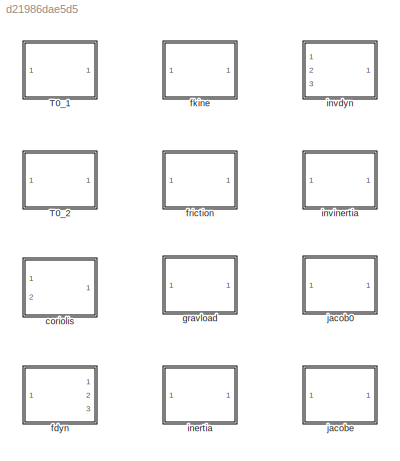
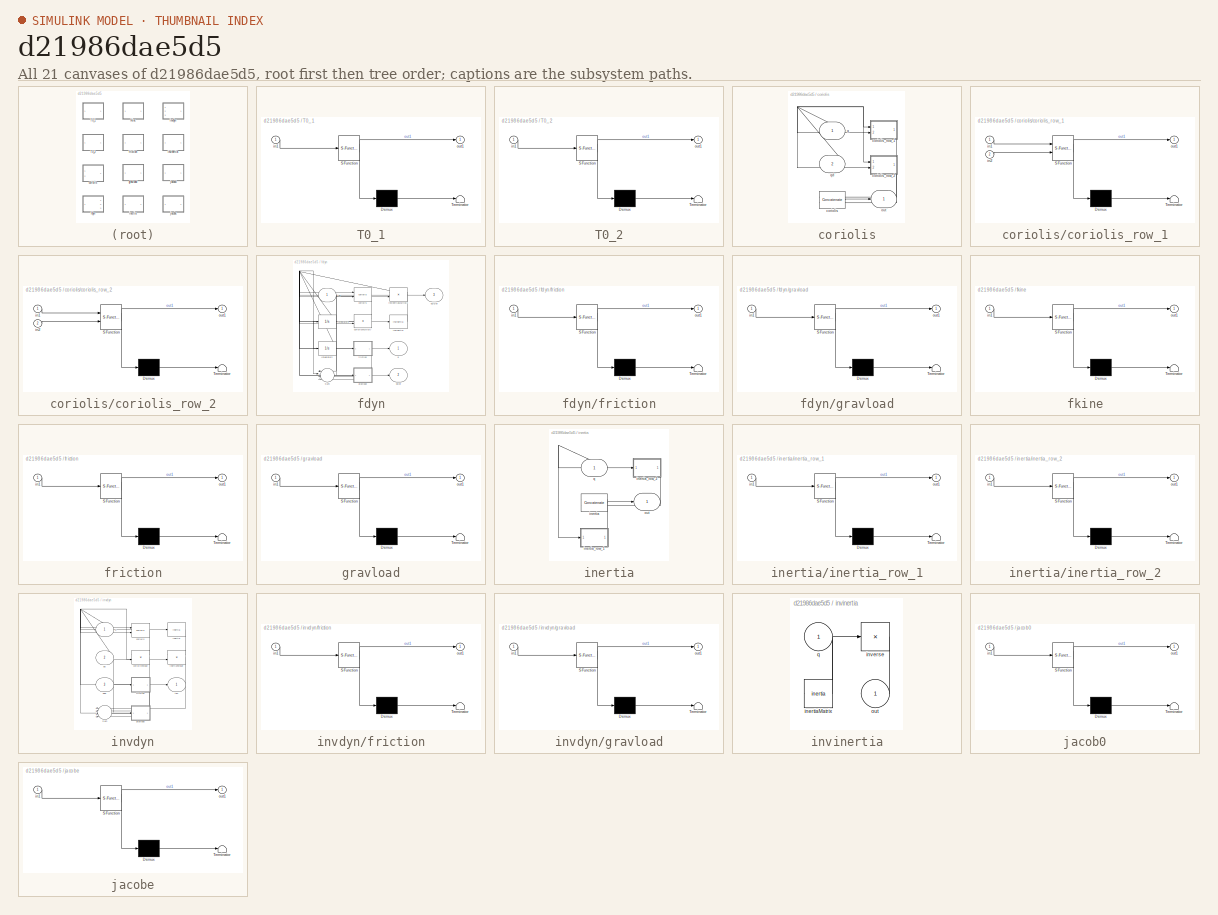
[diagram: thumbnail index - all 21 canvases of the model, root first then tree order]
MODEL slx_d21986dae5d5
KIND library
CONFIG AbsTol = auto
CONFIG EnableMultiTasking = off
CONFIG FixedStep = auto
CONFIG MaxStep = auto
CONFIG MinStep = auto
CONFIG RelTol = 1e-3
CONFIG SampleTimeConstraint = Unconstrained
CONFIG Solver = VariableStepAuto
CONFIG SolverName = VariableStepAuto
CONFIG StartTime = 0.0
CONFIG StopTime = 10.0
BLOCK [SubSystem] T0_1
  ErrorFcn = Stateflow.Translate.translate
  PermitHierarchicalResolution = ExplicitOnly
  Ports = [1, 1]
  RequestExecContextInheritance = off
  SFBlockType = MATLAB Function
  TreatAsAtomicUnit = on
BLOCK [Demux] T0_1/ Demux 
  Outputs = 1
  Ports = [1, 1]
BLOCK [S-Function] T0_1/ SFunction 
  EnableBusSupport = off
  FunctionName = sf_sfun
  PortCounts = [1 2]
  Ports = [1, 2]
  SFcnIsStateOwnerBlock = off
  SFunctionDeploymentMode = off
  Tag = Stateflow S-Function twolinkslib 4
BLOCK [Terminator] T0_1/ Terminator 
BLOCK [Inport] T0_1/in1
  IconDisplay = Port number
BLOCK [Outport] T0_1/out1
  IconDisplay = Port number
BLOCK [SubSystem] T0_2
  ErrorFcn = Stateflow.Translate.translate
  PermitHierarchicalResolution = ExplicitOnly
  Ports = [1, 1]
  RequestExecContextInheritance = off
  SFBlockType = MATLAB Function
  TreatAsAtomicUnit = on
BLOCK [Demux] T0_2/ Demux 
  Outputs = 1
  Ports = [1, 1]
BLOCK [S-Function] T0_2/ SFunction 
  EnableBusSupport = off
  FunctionName = sf_sfun
  PortCounts = [1 2]
  Ports = [1, 2]
  SFcnIsStateOwnerBlock = off
  SFunctionDeploymentMode = off
  Tag = Stateflow S-Function twolinkslib 5
BLOCK [Terminator] T0_2/ Terminator 
BLOCK [Inport] T0_2/in1
  IconDisplay = Port number
BLOCK [Outport] T0_2/out1
  IconDisplay = Port number
BLOCK [SubSystem] coriolis
  Ports = [2, 1]
  RequestExecContextInheritance = off
BLOCK [Concatenate] coriolis/coriolis
  Mode = Multidimensional array
  Ports = [2, 1]
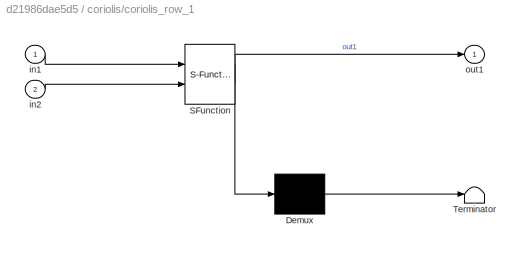
BLOCK [SubSystem] coriolis/coriolis_row_1
  ErrorFcn = Stateflow.Translate.translate
  PermitHierarchicalResolution = ExplicitOnly
  Ports = [2, 1]
  RequestExecContextInheritance = off
  SFBlockType = MATLAB Function
  TreatAsAtomicUnit = on
BLOCK [Demux] coriolis/coriolis_row_1/ Demux 
  Outputs = 1
  Ports = [1, 1]
BLOCK [S-Function] coriolis/coriolis_row_1/ SFunction 
  EnableBusSupport = off
  FunctionName = sf_sfun
  PortCounts = [2 2]
  Ports = [2, 2]
  SFcnIsStateOwnerBlock = off
  SFunctionDeploymentMode = off
  Tag = Stateflow S-Function twolinkslib 9
BLOCK [Terminator] coriolis/coriolis_row_1/ Terminator 
BLOCK [Inport] coriolis/coriolis_row_1/in1
  IconDisplay = Port number
BLOCK [Inport] coriolis/coriolis_row_1/in2
  IconDisplay = Port number
  Port = 2
BLOCK [Outport] coriolis/coriolis_row_1/out1
  IconDisplay = Port number
BLOCK [SubSystem] coriolis/coriolis_row_2
  ErrorFcn = Stateflow.Translate.translate
  PermitHierarchicalResolution = ExplicitOnly
  Ports = [2, 1]
  RequestExecContextInheritance = off
  SFBlockType = MATLAB Function
  TreatAsAtomicUnit = on
BLOCK [Demux] coriolis/coriolis_row_2/ Demux 
  Outputs = 1
  Ports = [1, 1]
BLOCK [S-Function] coriolis/coriolis_row_2/ SFunction 
  EnableBusSupport = off
  FunctionName = sf_sfun
  PortCounts = [2 2]
  Ports = [2, 2]
  SFcnIsStateOwnerBlock = off
  SFunctionDeploymentMode = off
  Tag = Stateflow S-Function twolinkslib 10
BLOCK [Terminator] coriolis/coriolis_row_2/ Terminator 
BLOCK [Inport] coriolis/coriolis_row_2/in1
  IconDisplay = Port number
BLOCK [Inport] coriolis/coriolis_row_2/in2
  IconDisplay = Port number
  Port = 2
BLOCK [Outport] coriolis/coriolis_row_2/out1
  IconDisplay = Port number
BLOCK [Outport] coriolis/out
  IconDisplay = Port number
BLOCK [Inport] coriolis/q
  IconDisplay = Port number
BLOCK [Inport] coriolis/qd
  IconDisplay = Port number
  Port = 2
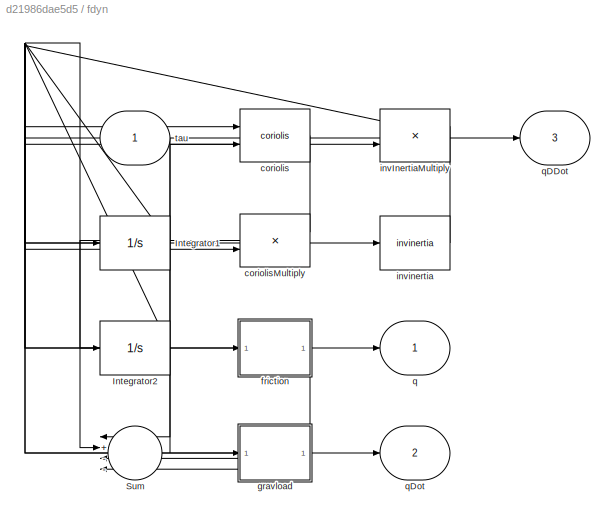
BLOCK [SubSystem] fdyn
  Ports = [1, 3]
  RequestExecContextInheritance = off
BLOCK [Integrator] fdyn/Integrator1
  Ports = [1, 1]
BLOCK [Integrator] fdyn/Integrator2
  Ports = [1, 1]
BLOCK [Sum] fdyn/Sum
  Inputs = |+---
  Ports = [4, 1]
BLOCK [Reference] fdyn/coriolis  REF=$bdroot/coriolis
  Ports = [2, 1]
  SourceBlock = $bdroot/coriolis
  SourceType = SubSystem
BLOCK [Product] fdyn/coriolisMultiply
  Multiplication = Matrix(*)
  Ports = [2, 1]
BLOCK [SubSystem] fdyn/friction
  ErrorFcn = Stateflow.Translate.translate
  PermitHierarchicalResolution = ExplicitOnly
  Ports = [1, 1]
  RequestExecContextInheritance = off
  SFBlockType = MATLAB Function
  TreatAsAtomicUnit = on
BLOCK [Demux] fdyn/friction/ Demux 
  Outputs = 1
  Ports = [1, 1]
BLOCK [S-Function] fdyn/friction/ SFunction 
  EnableBusSupport = off
  FunctionName = sf_sfun
  PortCounts = [1 2]
  Ports = [1, 2]
  SFcnIsStateOwnerBlock = off
  SFunctionDeploymentMode = off
  Tag = Stateflow S-Function twolinkslib 13
BLOCK [Terminator] fdyn/friction/ Terminator 
BLOCK [Inport] fdyn/friction/in1
  IconDisplay = Port number
BLOCK [Outport] fdyn/friction/out1
  IconDisplay = Port number
BLOCK [SubSystem] fdyn/gravload
  ErrorFcn = Stateflow.Translate.translate
  PermitHierarchicalResolution = ExplicitOnly
  Ports = [1, 1]
  RequestExecContextInheritance = off
  SFBlockType = MATLAB Function
  TreatAsAtomicUnit = on
BLOCK [Demux] fdyn/gravload/ Demux 
  Outputs = 1
  Ports = [1, 1]
BLOCK [S-Function] fdyn/gravload/ SFunction 
  EnableBusSupport = off
  FunctionName = sf_sfun
  PortCounts = [1 2]
  Ports = [1, 2]
  SFcnIsStateOwnerBlock = off
  SFunctionDeploymentMode = off
  Tag = Stateflow S-Function twolinkslib 12
BLOCK [Terminator] fdyn/gravload/ Terminator 
BLOCK [Inport] fdyn/gravload/in1
  IconDisplay = Port number
BLOCK [Outport] fdyn/gravload/out1
  IconDisplay = Port number
BLOCK [Product] fdyn/invInertiaMultiply
  Multiplication = Matrix(*)
  Ports = [2, 1]
BLOCK [Reference] fdyn/invinertia  REF=$bdroot/invinertia
  Ports = [1, 1]
  SourceBlock = $bdroot/invinertia
  SourceType = SubSystem
BLOCK [Outport] fdyn/q
  IconDisplay = Port number
BLOCK [Outport] fdyn/qDDot
  IconDisplay = Port number
  Port = 3
BLOCK [Outport] fdyn/qDot
  IconDisplay = Port number
  Port = 2
BLOCK [Inport] fdyn/tau
  IconDisplay = Port number
BLOCK [SubSystem] fkine
  ErrorFcn = Stateflow.Translate.translate
  PermitHierarchicalResolution = ExplicitOnly
  Ports = [1, 1]
  RequestExecContextInheritance = off
  SFBlockType = MATLAB Function
  TreatAsAtomicUnit = on
BLOCK [Demux] fkine/ Demux 
  Outputs = 1
  Ports = [1, 1]
BLOCK [S-Function] fkine/ SFunction 
  EnableBusSupport = off
  FunctionName = sf_sfun
  PortCounts = [1 2]
  Ports = [1, 2]
  SFcnIsStateOwnerBlock = off
  SFunctionDeploymentMode = off
  Tag = Stateflow S-Function twolinkslib 3
BLOCK [Terminator] fkine/ Terminator 
BLOCK [Inport] fkine/in1
  IconDisplay = Port number
BLOCK [Outport] fkine/out1
  IconDisplay = Port number
BLOCK [SubSystem] friction
  ErrorFcn = Stateflow.Translate.translate
  PermitHierarchicalResolution = ExplicitOnly
  Ports = [1, 1]
  RequestExecContextInheritance = off
  SFBlockType = MATLAB Function
  TreatAsAtomicUnit = on
BLOCK [Demux] friction/ Demux 
  Outputs = 1
  Ports = [1, 1]
BLOCK [S-Function] friction/ SFunction 
  EnableBusSupport = off
  FunctionName = sf_sfun
  PortCounts = [1 2]
  Ports = [1, 2]
  SFcnIsStateOwnerBlock = off
  SFunctionDeploymentMode = off
  Tag = Stateflow S-Function twolinkslib 11
BLOCK [Terminator] friction/ Terminator 
BLOCK [Inport] friction/in1
  IconDisplay = Port number
BLOCK [Outport] friction/out1
  IconDisplay = Port number
BLOCK [SubSystem] gravload
  ErrorFcn = Stateflow.Translate.translate
  PermitHierarchicalResolution = ExplicitOnly
  Ports = [1, 1]
  RequestExecContextInheritance = off
  SFBlockType = MATLAB Function
  TreatAsAtomicUnit = on
BLOCK [Demux] gravload/ Demux 
  Outputs = 1
  Ports = [1, 1]
BLOCK [S-Function] gravload/ SFunction 
  EnableBusSupport = off
  FunctionName = sf_sfun
  PortCounts = [1 2]
  Ports = [1, 2]
  SFcnIsStateOwnerBlock = off
  SFunctionDeploymentMode = off
  Tag = Stateflow S-Function twolinkslib 8
BLOCK [Terminator] gravload/ Terminator 
BLOCK [Inport] gravload/in1
  IconDisplay = Port number
BLOCK [Outport] gravload/out1
  IconDisplay = Port number
BLOCK [SubSystem] inertia
  Ports = [1, 1]
  RequestExecContextInheritance = off
BLOCK [Concatenate] inertia/inertia
  Mode = Multidimensional array
  Ports = [2, 1]
BLOCK [SubSystem] inertia/inertia_row_1
  ErrorFcn = Stateflow.Translate.translate
  PermitHierarchicalResolution = ExplicitOnly
  Ports = [1, 1]
  RequestExecContextInheritance = off
  SFBlockType = MATLAB Function
  TreatAsAtomicUnit = on
BLOCK [Demux] inertia/inertia_row_1/ Demux 
  Outputs = 1
  Ports = [1, 1]
BLOCK [S-Function] inertia/inertia_row_1/ SFunction 
  EnableBusSupport = off
  FunctionName = sf_sfun
  PortCounts = [1 2]
  Ports = [1, 2]
  SFcnIsStateOwnerBlock = off
  SFunctionDeploymentMode = off
  Tag = Stateflow S-Function twolinkslib 2
BLOCK [Terminator] inertia/inertia_row_1/ Terminator 
BLOCK [Inport] inertia/inertia_row_1/in1
  IconDisplay = Port number
BLOCK [Outport] inertia/inertia_row_1/out1
  IconDisplay = Port number
BLOCK [SubSystem] inertia/inertia_row_2
  ErrorFcn = Stateflow.Translate.translate
  PermitHierarchicalResolution = ExplicitOnly
  Ports = [1, 1]
  RequestExecContextInheritance = off
  SFBlockType = MATLAB Function
  TreatAsAtomicUnit = on
BLOCK [Demux] inertia/inertia_row_2/ Demux 
  Outputs = 1
  Ports = [1, 1]
BLOCK [S-Function] inertia/inertia_row_2/ SFunction 
  EnableBusSupport = off
  FunctionName = sf_sfun
  PortCounts = [1 2]
  Ports = [1, 2]
  SFcnIsStateOwnerBlock = off
  SFunctionDeploymentMode = off
  Tag = Stateflow S-Function twolinkslib 1
BLOCK [Terminator] inertia/inertia_row_2/ Terminator 
BLOCK [Inport] inertia/inertia_row_2/in1
  IconDisplay = Port number
BLOCK [Outport] inertia/inertia_row_2/out1
  IconDisplay = Port number
BLOCK [Outport] inertia/out
  IconDisplay = Port number
BLOCK [Inport] inertia/q
  IconDisplay = Port number
BLOCK [SubSystem] invdyn
  Ports = [3, 1]
  RequestExecContextInheritance = off
BLOCK [Sum] invdyn/Sum
  Inputs = ++++
  Ports = [4, 1]
BLOCK [Reference] invdyn/coriolis  REF=$bdroot/coriolis
  Ports = [2, 1]
  SourceBlock = $bdroot/coriolis
  SourceType = SubSystem
BLOCK [Product] invdyn/coriolisTorque
  Multiplication = Matrix(*)
  Ports = [2, 1]
BLOCK [SubSystem] invdyn/friction
  ErrorFcn = Stateflow.Translate.translate
  PermitHierarchicalResolution = ExplicitOnly
  Ports = [1, 1]
  RequestExecContextInheritance = off
  SFBlockType = MATLAB Function
  TreatAsAtomicUnit = on
BLOCK [Demux] invdyn/friction/ Demux 
  Outputs = 1
  Ports = [1, 1]
BLOCK [S-Function] invdyn/friction/ SFunction 
  EnableBusSupport = off
  FunctionName = sf_sfun
  PortCounts = [1 2]
  Ports = [1, 2]
  SFcnIsStateOwnerBlock = off
  SFunctionDeploymentMode = off
  Tag = Stateflow S-Function twolinkslib 15
BLOCK [Terminator] invdyn/friction/ Terminator 
BLOCK [Inport] invdyn/friction/in1
  IconDisplay = Port number
BLOCK [Outport] invdyn/friction/out1
  IconDisplay = Port number
BLOCK [SubSystem] invdyn/gravload
  ErrorFcn = Stateflow.Translate.translate
  PermitHierarchicalResolution = ExplicitOnly
  Ports = [1, 1]
  RequestExecContextInheritance = off
  SFBlockType = MATLAB Function
  TreatAsAtomicUnit = on
BLOCK [Demux] invdyn/gravload/ Demux 
  Outputs = 1
  Ports = [1, 1]
BLOCK [S-Function] invdyn/gravload/ SFunction 
  EnableBusSupport = off
  FunctionName = sf_sfun
  PortCounts = [1 2]
  Ports = [1, 2]
  SFcnIsStateOwnerBlock = off
  SFunctionDeploymentMode = off
  Tag = Stateflow S-Function twolinkslib 14
BLOCK [Terminator] invdyn/gravload/ Terminator 
BLOCK [Inport] invdyn/gravload/in1
  IconDisplay = Port number
BLOCK [Outport] invdyn/gravload/out1
  IconDisplay = Port number
BLOCK [Reference] invdyn/inertia  REF=$bdroot/inertia
  Ports = [1, 1]
  SourceBlock = $bdroot/inertia
  SourceType = SubSystem
BLOCK [Product] invdyn/inertiaTorque
  Multiplication = Matrix(*)
  Ports = [2, 1]
BLOCK [Inport] invdyn/q
  IconDisplay = Port number
BLOCK [Inport] invdyn/qd
  IconDisplay = Port number
  Port = 2
BLOCK [Inport] invdyn/qdd
  IconDisplay = Port number
  Port = 3
BLOCK [Outport] invdyn/tau
  IconDisplay = Port number
BLOCK [SubSystem] invinertia
  Ports = [1, 1]
  RequestExecContextInheritance = off
BLOCK [Reference] invinertia/inertiaMatrix  REF=$bdroot/inertia
  Ports = [1, 1]
  SourceBlock = $bdroot/inertia
  SourceType = SubSystem
BLOCK [Product] invinertia/inverse
  InputSameDT = off
  Inputs = /
  Multiplication = Matrix(*)
  OutDataTypeStr = Inherit: Inherit via internal rule
  Ports = [1, 1]
  RndMeth = Floor
  SaturateOnIntegerOverflow = off
BLOCK [Outport] invinertia/out
  IconDisplay = Port number
BLOCK [Inport] invinertia/q
  IconDisplay = Port number
BLOCK [SubSystem] jacob0
  ErrorFcn = Stateflow.Translate.translate
  PermitHierarchicalResolution = ExplicitOnly
  Ports = [1, 1]
  RequestExecContextInheritance = off
  SFBlockType = MATLAB Function
  TreatAsAtomicUnit = on
BLOCK [Demux] jacob0/ Demux 
  Outputs = 1
  Ports = [1, 1]
BLOCK [S-Function] jacob0/ SFunction 
  EnableBusSupport = off
  FunctionName = sf_sfun
  PortCounts = [1 2]
  Ports = [1, 2]
  SFcnIsStateOwnerBlock = off
  SFunctionDeploymentMode = off
  Tag = Stateflow S-Function twolinkslib 6
BLOCK [Terminator] jacob0/ Terminator 
BLOCK [Inport] jacob0/in1
  IconDisplay = Port number
BLOCK [Outport] jacob0/out1
  IconDisplay = Port number
BLOCK [SubSystem] jacobe
  ErrorFcn = Stateflow.Translate.translate
  PermitHierarchicalResolution = ExplicitOnly
  Ports = [1, 1]
  RequestExecContextInheritance = off
  SFBlockType = MATLAB Function
  TreatAsAtomicUnit = on
BLOCK [Demux] jacobe/ Demux 
  Outputs = 1
  Ports = [1, 1]
BLOCK [S-Function] jacobe/ SFunction 
  EnableBusSupport = off
  FunctionName = sf_sfun
  PortCounts = [1 2]
  Ports = [1, 2]
  SFcnIsStateOwnerBlock = off
  SFunctionDeploymentMode = off
  Tag = Stateflow S-Function twolinkslib 7
BLOCK [Terminator] jacobe/ Terminator 
BLOCK [Inport] jacobe/in1
  IconDisplay = Port number
BLOCK [Outport] jacobe/out1
  IconDisplay = Port number
LINE coriolis/coriolis:1 -> coriolis/out:1
LINE coriolis/coriolis_row_1:1 -> coriolis/coriolis:1
LINE coriolis/coriolis_row_2:1 -> coriolis/coriolis:2
NET coriolis/q:1 -> coriolis/coriolis_row_1:1, coriolis/coriolis_row_2:1
NET coriolis/qd:1 -> coriolis/coriolis_row_1:2, coriolis/coriolis_row_2:2
NET fdyn/Integrator1:1 -> fdyn/Integrator2:1, fdyn/coriolis:2, fdyn/coriolisMultiply:2, fdyn/friction:1, fdyn/qDot:1
NET fdyn/Integrator2:1 -> fdyn/coriolis:1, fdyn/gravload:1, fdyn/invinertia:1, fdyn/q:1
LINE fdyn/Sum:1 -> fdyn/invInertiaMultiply:2
LINE fdyn/coriolis:1 -> fdyn/coriolisMultiply:1
LINE fdyn/coriolisMultiply:1 -> fdyn/Sum:2
LINE fdyn/friction:1 -> fdyn/Sum:4
LINE fdyn/gravload:1 -> fdyn/Sum:3
NET fdyn/invInertiaMultiply:1 -> fdyn/Integrator1:1, fdyn/qDDot:1
LINE fdyn/invinertia:1 -> fdyn/invInertiaMultiply:1
LINE fdyn/tau:1 -> fdyn/Sum:1
LINE inertia/inertia:1 -> inertia/out:1
LINE inertia/inertia_row_1:1 -> inertia/inertia:1
LINE inertia/inertia_row_2:1 -> inertia/inertia:2
NET inertia/q:1 -> inertia/inertia_row_1:1, inertia/inertia_row_2:1
LINE invdyn/Sum:1 -> invdyn/tau:1
LINE invdyn/coriolis:1 -> invdyn/coriolisTorque:1
LINE invdyn/coriolisTorque:1 -> invdyn/Sum:2
LINE invdyn/friction:1 -> invdyn/Sum:4
LINE invdyn/gravload:1 -> invdyn/Sum:3
LINE invdyn/inertia:1 -> invdyn/inertiaTorque:1
LINE invdyn/inertiaTorque:1 -> invdyn/Sum:1
NET invdyn/q:1 -> invdyn/coriolis:1, invdyn/gravload:1, invdyn/inertia:1
NET invdyn/qd:1 -> invdyn/coriolis:2, invdyn/coriolisTorque:2, invdyn/friction:1
LINE invdyn/qdd:1 -> invdyn/inertiaTorque:2
LINE invinertia/inertiaMatrix:1 -> invinertia/inverse:1
LINE invinertia/inverse:1 -> invinertia/out:1
LINE invinertia/q:1 -> invinertia/inertiaMatrix:1
note: NET lines group one-source signal fan-out (src -> all destinations, sorted); 1:1 wires keep LINE
CHART inertia/inertia_row_2 states=1 transitions=1
  STATE_LABEL 'eML_blk_kernel()'
  STATE_LABEL 'SCRIPT:\nfunction out1 = inertia_row_2(in1)\n%#codegen\n\n%    This function was generated by the Symbolic Math Toolbox version 8.3.\n%    26-Apr-2019 09:45:12\n\nq2 = in1(:,2);\nout1 = [cos(q2)./2.0+1.0./4.0,1.0./4.0];\n'
CHART inertia/inertia_row_1 states=1 transitions=1
  STATE_LABEL 'eML_blk_kernel()'
  STATE_LABEL 'SCRIPT:\nfunction out1 = inertia_row_1(in1)\n%#codegen\n\n%    This function was generated by the Symbolic Math Toolbox version 8.3.\n%    26-Apr-2019 09:45:12\n\nq2 = in1(:,2);\nt2 = cos(q2);\nout1 = [t2+3.0./2.0,t2./2.0+1.0./4.0];\n'
CHART fkine states=1 transitions=1
  STATE_LABEL 'eML_blk_kernel()'
  STATE_LABEL 'SCRIPT:\nfunction out1 = fkine(in1)\n%#codegen\n\n%    This function was generated by the Symbolic Math Toolbox version 8.3.\n%    26-Apr-2019 09:45:03\n\nq1 = in1(:,1);\nq2 = in1(:,2);\nt2 = q1+q2;\nt3 = cos(t2);\nt4 = sin(t2);\nout1 = reshape([t3,0.0,t4,0.0,-t4,0.0,t3,0.0,0.0,-1.0,0.0,0.0,t3+cos(q1),0.0,t4+sin(q1),1.0],[4,4]);\n'
CHART T0_1 states=1 transitions=1
  STATE_LABEL 'eML_blk_kernel()'
  STATE_LABEL 'SCRIPT:\nfunction out1 = T0_1(in1)\n%#codegen\n\n%    This function was generated by the Symbolic Math Toolbox version 8.3.\n%    26-Apr-2019 09:45:03\n\nq1 = in1(:,1);\nt2 = cos(q1);\nt3 = sin(q1);\nout1 = reshape([t2,0.0,t3,0.0,-t3,0.0,t2,0.0,0.0,-1.0,0.0,0.0,t2,0.0,t3,1.0],[4,4]);\n'
CHART T0_2 states=1 transitions=1
  STATE_LABEL 'eML_blk_kernel()'
  STATE_LABEL 'SCRIPT:\nfunction out1 = T0_2(in1)\n%#codegen\n\n%    This function was generated by the Symbolic Math Toolbox version 8.3.\n%    26-Apr-2019 09:45:04\n\nq1 = in1(:,1);\nq2 = in1(:,2);\nt2 = cos(q1);\nt3 = cos(q2);\nt4 = sin(q1);\nt5 = sin(q2);\nt6 = t2.*t3;\nt7 = t2.*t5;\nt8 = t3.*t4;\nt9 = t4.*t5;\nt10 = -t9;\nt11 = t6+t10;\nout1 = reshape([t11,0.0,t7+t8,0.0,-t7-t8,0.0,t11,0.0,0.0,-1.0,0.0,0.0,t2+t11,0.0,t4+t7+t8,...<+13ch>'
CHART jacob0 states=1 transitions=1
  STATE_LABEL 'eML_blk_kernel()'
  STATE_LABEL 'SCRIPT:\nfunction out1 = jacob0(in1)\n%#codegen\n\n%    This function was generated by the Symbolic Math Toolbox version 8.3.\n%    26-Apr-2019 09:45:06\n\nq1 = in1(:,1);\nq2 = in1(:,2);\nt2 = cos(q2);\nt3 = sin(q2);\nt4 = q1+q2;\nt5 = t2+1.0;\nt6 = cos(t4);\nt7 = sin(t4);\nout1 = reshape([t3.*t6-t5.*t7,0.0,t3.*t7+t5.*t6,0.0,-1.0,0.0,-t7,0.0,t6,0.0,-1.0,0.0],[6,2]);\n'
CHART jacobe states=1 transitions=1
  STATE_LABEL 'eML_blk_kernel()'
  STATE_LABEL 'SCRIPT:\nfunction out1 = jacobe(in1)\n%#codegen\n\n%    This function was generated by the Symbolic Math Toolbox version 8.3.\n%    26-Apr-2019 09:45:07\n\nq2 = in1(:,2);\nout1 = reshape([sin(q2),cos(q2)+1.0,0.0,0.0,0.0,1.0,0.0,1.0,0.0,0.0,0.0,1.0],[6,2]);\n'
CHART gravload states=1 transitions=1
  STATE_LABEL 'eML_blk_kernel()'
  STATE_LABEL 'SCRIPT:\nfunction out1 = gravload(in1)\n%#codegen\n\n%    This function was generated by the Symbolic Math Toolbox version 8.3.\n%    26-Apr-2019 09:45:09\n\nq1 = in1(:,1);\nq2 = in1(:,2);\nt2 = q1+q2;\nt3 = cos(t2);\nt4 = t3.*(9.81e+2./2.0e+2);\nout1 = [t4+cos(q1).*1.4715e+1,t4];\n'  <repeated x3 — deduplicated; at blocks: gravload>
CHART coriolis/coriolis_row_1 states=1 transitions=1
  STATE_LABEL 'eML_blk_kernel()'
  STATE_LABEL 'SCRIPT:\nfunction out1 = coriolis_row_1(in1,in2)\n%#codegen\n\n%    This function was generated by the Symbolic Math Toolbox version 8.3.\n%    26-Apr-2019 09:45:16\n\nq2 = in1(:,2);\nqd1 = in2(:,1);\nqd2 = in2(:,2);\nt2 = sin(q2);\nout1 = [qd2.*t2.*(-1.0./2.0),t2.*(qd1+qd2).*(-1.0./2.0)];\n'
CHART coriolis/coriolis_row_2 states=1 transitions=1
  STATE_LABEL 'eML_blk_kernel()'
  STATE_LABEL 'SCRIPT:\nfunction out1 = coriolis_row_2(in1,in2)\n%#codegen\n\n%    This function was generated by the Symbolic Math Toolbox version 8.3.\n%    26-Apr-2019 09:45:16\n\nq2 = in1(:,2);\nqd1 = in2(:,1);\nout1 = [(qd1.*sin(q2))./2.0,0.0];\n'
CHART friction states=1 transitions=1
  STATE_LABEL 'eML_blk_kernel()'
  STATE_LABEL 'SCRIPT:\nfunction out1 = friction(in1)\n%#codegen\n\n%    This function was generated by the Symbolic Math Toolbox version 8.3.\n%    26-Apr-2019 09:45:18\n\nout1 = [0.0,0.0];\n'
CHART fdyn/gravload states=1 transitions=1
  STATE_LABEL 'eML_blk_kernel()'
CHART fdyn/friction states=1 transitions=1
  STATE_LABEL 'eML_blk_kernel()'
  STATE_LABEL 'SCRIPT:\nfunction out1 = friction(in1)\n%#codegen\n\n%    This function was generated by the Symbolic Math Toolbox version 8.3.\n%    26-Apr-2019 09:45:18\n\nout1 = [0.0,0.0];\n'
CHART invdyn/gravload states=1 transitions=1
  STATE_LABEL 'eML_blk_kernel()'
CHART invdyn/friction states=1 transitions=1
  STATE_LABEL 'eML_blk_kernel()'
  STATE_LABEL 'SCRIPT:\nfunction out1 = friction(in1)\n%#codegen\n\n%    This function was generated by the Symbolic Math Toolbox version 8.3.\n%    26-Apr-2019 09:45:18\n\nout1 = [0.0,0.0];\n'
